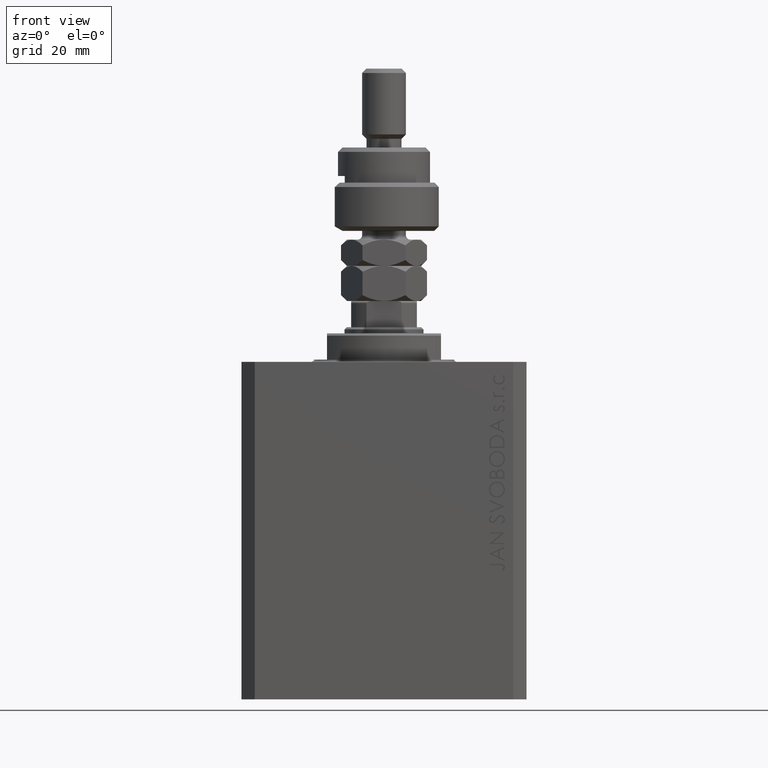
[diagram: clean part render]
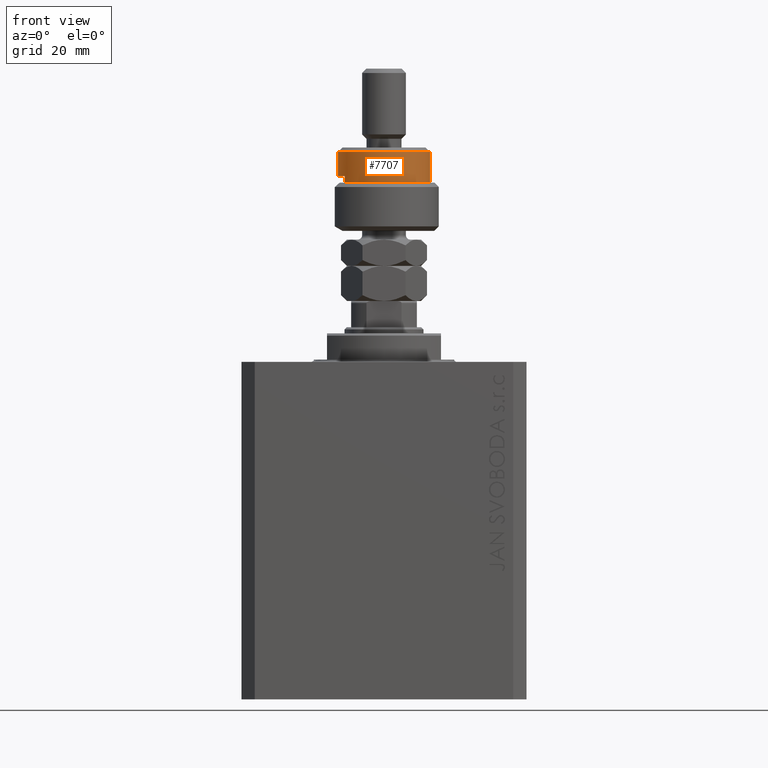
[diagram: same view with one face highlighted and labeled with its STEP entity id]
A machine part, front view. The second image highlights one B-rep face of the part: STEP entity #7707.
In plain terms, the highlighted cylindrical surface (partial cylindrical patch) has radius 10.5 mm, axis along (-0, -0, -1).
Its self-contained STEP definition (entity closure, byte-faithful):
#462 = AXIS2_PLACEMENT_3D ( 'NONE', #35906, #13588, #29055 ) ;
#2175 = AXIS2_PLACEMENT_3D ( 'NONE', #13976, #29442, #21832 ) ;
#2407 = DIRECTION ( 'NONE',  ( -0.000000000000000000, -0.000000000000000000, -1.000000000000000000 ) ) ;
#4169 = VERTEX_POINT ( 'NONE', #27695 ) ;
#4426 = ORIENTED_EDGE ( 'NONE', *, *, #42563, .T. ) ;
#4813 = VERTEX_POINT ( 'NONE', #7604 ) ;
#5013 = FACE_OUTER_BOUND ( 'NONE', #5605, .T. ) ;
#5605 = EDGE_LOOP ( 'NONE', ( #37167, #44233, #4426, #15069, #31244, #15682 ) ) ;
#6897 = LINE ( 'NONE', #33746, #21596 ) ;
#7513 = EDGE_CURVE ( 'NONE', #4813, #28428, #25504, .T. ) ;
#7604 = CARTESIAN_POINT ( 'NONE',  ( -8.944271909999159220, -5.500000000000000000, 11.00000000000000000 ) ) ;
#7707 = ADVANCED_FACE ( 'NONE', ( #5013 ), #20459, .T. ) ;
#9411 = DIRECTION ( 'NONE',  ( 1.000000000000000000, 0.000000000000000000, 0.000000000000000000 ) ) ;
#9856 = VECTOR ( 'NONE', #2407, 1000.000000000000000 ) ;
#11761 = EDGE_CURVE ( 'NONE', #21569, #4169, #37756, .T. ) ;
#13588 = DIRECTION ( 'NONE',  ( -0.000000000000000000, -0.000000000000000000, -1.000000000000000000 ) ) ;
#13976 = CARTESIAN_POINT ( 'NONE',  ( 0.000000000000000000, 0.000000000000000000, 12.50000000000000000 ) ) ;
#14505 = AXIS2_PLACEMENT_3D ( 'NONE', #20844, #44353, #40084 ) ;
#15069 = ORIENTED_EDGE ( 'NONE', *, *, #11761, .F. ) ;
#15682 = ORIENTED_EDGE ( 'NONE', *, *, #7513, .T. ) ;
#18850 = LINE ( 'NONE', #37086, #9856 ) ;
#19812 = CARTESIAN_POINT ( 'NONE',  ( -8.944271909999159220, -5.500000000000000000, 12.50000000000000000 ) ) ;
#20459 = CYLINDRICAL_SURFACE ( 'NONE', #462, 10.50000000000000000 ) ;
#20798 = LINE ( 'NONE', #35502, #25049 ) ;
#20844 = CARTESIAN_POINT ( 'NONE',  ( 0.000000000000000000, 0.000000000000000000, 17.99999999999999645 ) ) ;
#21569 = VERTEX_POINT ( 'NONE', #19812 ) ;
#21596 = VECTOR ( 'NONE', #22339, 1000.000000000000000 ) ;
#21832 = DIRECTION ( 'NONE',  ( -1.000000000000000000, 0.000000000000000000, 0.000000000000000000 ) ) ;
#22339 = DIRECTION ( 'NONE',  ( -0.000000000000000000, -0.000000000000000000, -1.000000000000000000 ) ) ;
#24851 = DIRECTION ( 'NONE',  ( -0.000000000000000000, -0.000000000000000000, -1.000000000000000000 ) ) ;
#25049 = VECTOR ( 'NONE', #24851, 1000.000000000000000 ) ;
#25504 = CIRCLE ( 'NONE', #42472, 10.50000000000000000 ) ;
#26628 = EDGE_CURVE ( 'NONE', #21569, #4813, #18850, .T. ) ;
#26829 = CARTESIAN_POINT ( 'NONE',  ( -10.50000000000000000, 0.000000000000000000, 17.99999999999999645 ) ) ;
#27382 = VERTEX_POINT ( 'NONE', #26829 ) ;
#27695 = CARTESIAN_POINT ( 'NONE',  ( -10.50000000000000000, 0.000000000000000000, 12.50000000000000000 ) ) ;
#28428 = VERTEX_POINT ( 'NONE', #43009 ) ;
#29055 = DIRECTION ( 'NONE',  ( -1.000000000000000000, 0.000000000000000000, 0.000000000000000000 ) ) ;
#29442 = DIRECTION ( 'NONE',  ( 0.000000000000000000, 0.000000000000000000, -1.000000000000000000 ) ) ;
#30348 = CARTESIAN_POINT ( 'NONE',  ( 10.50000000000000000, 1.285879139104720831E-15, 17.99999999999999645 ) ) ;
#30775 = EDGE_CURVE ( 'NONE', #39858, #28428, #6897, .T. ) ;
#31244 = ORIENTED_EDGE ( 'NONE', *, *, #26628, .T. ) ;
#32477 = DIRECTION ( 'NONE',  ( 0.000000000000000000, 0.000000000000000000, 1.000000000000000000 ) ) ;
#33746 = CARTESIAN_POINT ( 'NONE',  ( 10.50000000000000000, 1.285879139104720831E-15, 19.00000000000000000 ) ) ;
#35502 = CARTESIAN_POINT ( 'NONE',  ( -10.50000000000000000, 0.000000000000000000, 19.00000000000000000 ) ) ;
#35906 = CARTESIAN_POINT ( 'NONE',  ( 0.000000000000000000, 0.000000000000000000, 19.00000000000000000 ) ) ;
#37086 = CARTESIAN_POINT ( 'NONE',  ( -8.944271909999159220, -5.500000000000000000, 19.00000000000000000 ) ) ;
#37167 = ORIENTED_EDGE ( 'NONE', *, *, #30775, .F. ) ;
#37756 = CIRCLE ( 'NONE', #2175, 10.50000000000000000 ) ;
#39858 = VERTEX_POINT ( 'NONE', #30348 ) ;
#40084 = DIRECTION ( 'NONE',  ( 1.000000000000000000, 0.000000000000000000, 0.000000000000000000 ) ) ;
#42472 = AXIS2_PLACEMENT_3D ( 'NONE', #47625, #32477, #9411 ) ;
#42563 = EDGE_CURVE ( 'NONE', #27382, #4169, #20798, .T. ) ;
#43009 = CARTESIAN_POINT ( 'NONE',  ( 10.50000000000000000, 1.285879139104720831E-15, 11.00000000000000000 ) ) ;
#43075 = EDGE_CURVE ( 'NONE', #39858, #27382, #49235, .T. ) ;
#44233 = ORIENTED_EDGE ( 'NONE', *, *, #43075, .T. ) ;
#44353 = DIRECTION ( 'NONE',  ( 0.000000000000000000, 0.000000000000000000, -1.000000000000000000 ) ) ;
#47625 = CARTESIAN_POINT ( 'NONE',  ( 0.000000000000000000, 0.000000000000000000, 11.00000000000000000 ) ) ;
#49235 = CIRCLE ( 'NONE', #14505, 10.50000000000000000 ) ;